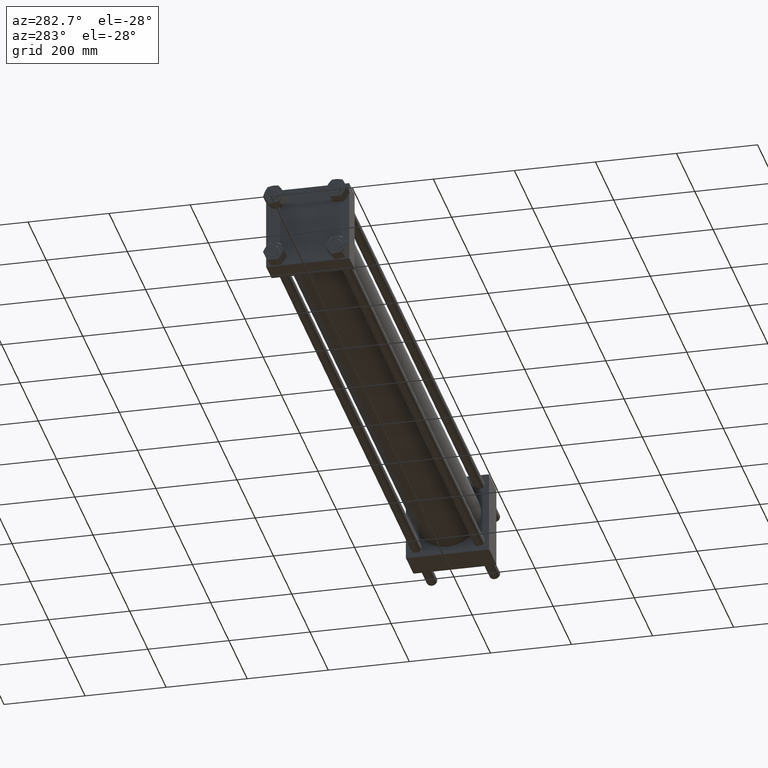
[diagram: clean part render]
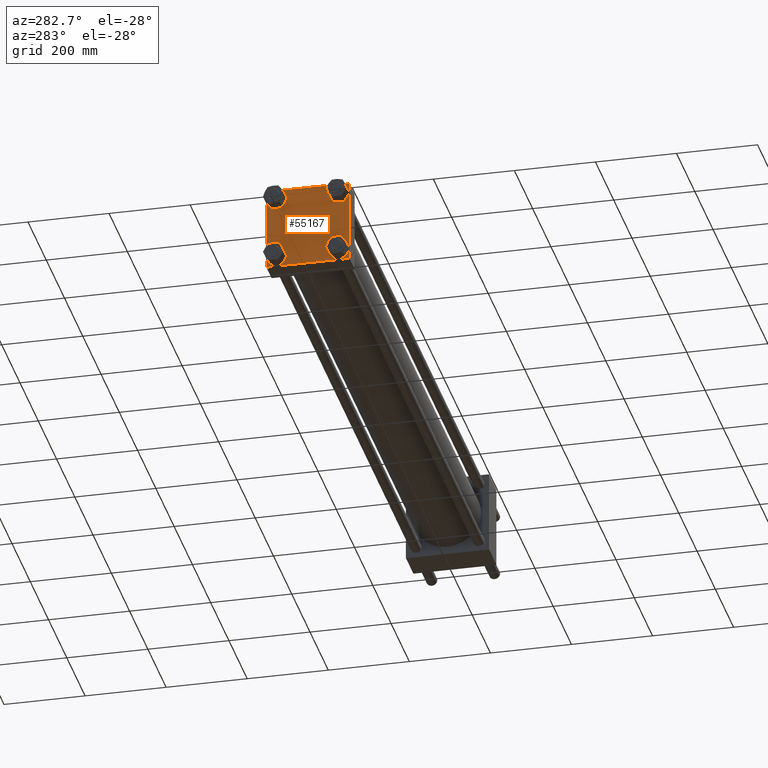
[diagram: same view with one face highlighted and labeled with its STEP entity id]
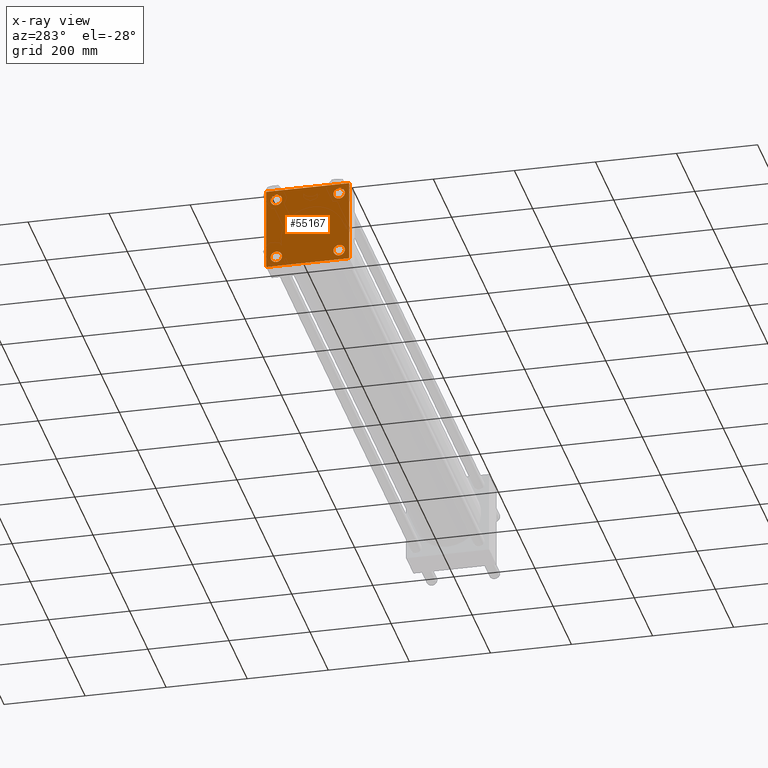
[diagram: x-ray of the same camera — body ghosted, the highlighted face saturated]
A machine part, auxiliary view. The second image highlights one B-rep face of the part: STEP entity #55167.
The next image is the same camera in x-ray: the body ghosted, the highlighted face saturated — about 0% of this face is hidden behind the body in this view.
In plain terms, the highlighted planar face has unit normal (-1, 0, 0).
Its self-contained STEP definition (entity closure, byte-faithful):
#153 = EDGE_CURVE ( 'NONE', #3515, #52894, #32252, .T. ) ;
#1124 = AXIS2_PLACEMENT_3D ( 'NONE', #56387, #47984, #52899 ) ;
#1281 = EDGE_CURVE ( 'NONE', #21848, #31931, #5615, .T. ) ;
#1359 = AXIS2_PLACEMENT_3D ( 'NONE', #23586, #54257, #15179 ) ;
#1747 = EDGE_CURVE ( 'NONE', #38564, #6823, #56321, .T. ) ;
#1810 = CARTESIAN_POINT ( 'NONE',  ( 0.000000000000000000, 77.44999999999998863, -63.44999999999989626 ) ) ;
#2348 = ORIENTED_EDGE ( 'NONE', *, *, #14543, .T. ) ;
#2793 = CARTESIAN_POINT ( 'NONE',  ( 0.000000000000000000, 102.2500000000000142, 102.2500000000000142 ) ) ;
#3515 = VERTEX_POINT ( 'NONE', #4379 ) ;
#3971 = ORIENTED_EDGE ( 'NONE', *, *, #7669, .T. ) ;
#4379 = CARTESIAN_POINT ( 'NONE',  ( 0.000000000000000000, -101.9999999999999432, -102.5000000000000000 ) ) ;
#4893 = CARTESIAN_POINT ( 'NONE',  ( 0.000000000000000000, -77.44999999999996021, -63.44999999999991047 ) ) ;
#5444 = DIRECTION ( 'NONE',  ( 0.000000000000000000, -1.000000000000000000, -1.353930517835556973E-16 ) ) ;
#5615 = CIRCLE ( 'NONE', #37997, 14.00000000000012434 ) ;
#5855 = EDGE_CURVE ( 'NONE', #6823, #34280, #20680, .T. ) ;
#5912 = DIRECTION ( 'NONE',  ( 0.000000000000000000, 0.000000000000000000, 1.000000000000000000 ) ) ;
#6148 = VERTEX_POINT ( 'NONE', #1810 ) ;
#6531 = VECTOR ( 'NONE', #18368, 1000.000000000000114 ) ;
#6823 = VERTEX_POINT ( 'NONE', #34588 ) ;
#7039 = EDGE_LOOP ( 'NONE', ( #24312, #51787 ) ) ;
#7669 = EDGE_CURVE ( 'NONE', #54705, #10793, #36384, .T. ) ;
#7698 = DIRECTION ( 'NONE',  ( 0.000000000000000000, 0.7071067811865474617, -0.7071067811865474617 ) ) ;
#8045 = EDGE_CURVE ( 'NONE', #38564, #22757, #22812, .T. ) ;
#8528 = FACE_OUTER_BOUND ( 'NONE', #46025, .T. ) ;
#9409 = LINE ( 'NONE', #18384, #41506 ) ;
#9796 = EDGE_LOOP ( 'NONE', ( #2348, #39002 ) ) ;
#10793 = VERTEX_POINT ( 'NONE', #14462 ) ;
#10838 = LINE ( 'NONE', #47282, #52496 ) ;
#11137 = DIRECTION ( 'NONE',  ( 0.000000000000000000, 0.000000000000000000, 1.000000000000000000 ) ) ;
#11668 = ORIENTED_EDGE ( 'NONE', *, *, #29781, .T. ) ;
#11911 = AXIS2_PLACEMENT_3D ( 'NONE', #23005, #14882, #5912 ) ;
#12106 = EDGE_CURVE ( 'NONE', #6148, #52434, #26338, .T. ) ;
#14063 = CIRCLE ( 'NONE', #1124, 14.00000000000012434 ) ;
#14092 = VECTOR ( 'NONE', #56554, 1000.000000000000000 ) ;
#14302 = ORIENTED_EDGE ( 'NONE', *, *, #153, .T. ) ;
#14462 = CARTESIAN_POINT ( 'NONE',  ( 0.000000000000000000, -77.44999999999996021, -91.45000000000015916 ) ) ;
#14543 = EDGE_CURVE ( 'NONE', #54050, #15514, #22557, .T. ) ;
#14812 = ORIENTED_EDGE ( 'NONE', *, *, #32584, .T. ) ;
#14882 = DIRECTION ( 'NONE',  ( 1.000000000000000000, -0.000000000000000000, -0.000000000000000000 ) ) ;
#15179 = DIRECTION ( 'NONE',  ( 0.000000000000000000, 0.000000000000000000, 1.000000000000000000 ) ) ;
#15514 = VERTEX_POINT ( 'NONE', #28003 ) ;
#16002 = ORIENTED_EDGE ( 'NONE', *, *, #5855, .T. ) ;
#16460 = AXIS2_PLACEMENT_3D ( 'NONE', #45737, #37344, #41111 ) ;
#17217 = PLANE ( 'NONE',  #35903 ) ;
#17432 = ORIENTED_EDGE ( 'NONE', *, *, #8045, .F. ) ;
#18302 = ORIENTED_EDGE ( 'NONE', *, *, #28971, .T. ) ;
#18368 = DIRECTION ( 'NONE',  ( 0.000000000000000000, -0.7071067811865474617, 0.7071067811865474617 ) ) ;
#18384 = CARTESIAN_POINT ( 'NONE',  ( 0.000000000000000000, 102.2500000000000000, -102.2500000000000000 ) ) ;
#19964 = DIRECTION ( 'NONE',  ( 0.000000000000000000, 0.000000000000000000, 1.000000000000000000 ) ) ;
#20395 = CARTESIAN_POINT ( 'NONE',  ( 0.000000000000000000, -77.44999999999996021, -77.45000000000003126 ) ) ;
#20680 = LINE ( 'NONE', #38354, #14092 ) ;
#21275 = ORIENTED_EDGE ( 'NONE', *, *, #35718, .T. ) ;
#21385 = CARTESIAN_POINT ( 'NONE',  ( 0.000000000000000000, -77.44999999999996021, 63.44999999999991047 ) ) ;
#21625 = DIRECTION ( 'NONE',  ( 0.000000000000000000, -1.000000000000000000, -1.353930517835556727E-16 ) ) ;
#21848 = VERTEX_POINT ( 'NONE', #24123 ) ;
#22557 = CIRCLE ( 'NONE', #54904, 14.00000000000012434 ) ;
#22757 = VERTEX_POINT ( 'NONE', #30611 ) ;
#22812 = LINE ( 'NONE', #31796, #38202 ) ;
#23005 = CARTESIAN_POINT ( 'NONE',  ( 0.000000000000000000, 77.44999999999998863, 77.45000000000001705 ) ) ;
#23369 = CARTESIAN_POINT ( 'NONE',  ( 0.000000000000000000, 77.44999999999998863, -91.45000000000014495 ) ) ;
#23586 = CARTESIAN_POINT ( 'NONE',  ( 0.000000000000000000, 77.44999999999998863, -77.45000000000001705 ) ) ;
#23969 = CARTESIAN_POINT ( 'NONE',  ( 0.000000000000000000, -102.4999999999999716, 102.0000000000000000 ) ) ;
#23999 = LINE ( 'NONE', #46273, #27875 ) ;
#24123 = CARTESIAN_POINT ( 'NONE',  ( 0.000000000000000000, -77.44999999999996021, 91.45000000000015916 ) ) ;
#24312 = ORIENTED_EDGE ( 'NONE', *, *, #12106, .T. ) ;
#24489 = CARTESIAN_POINT ( 'NONE',  ( 0.000000000000000000, 102.0000000000000142, 102.5000000000000284 ) ) ;
#25033 = DIRECTION ( 'NONE',  ( 1.000000000000000000, -0.000000000000000000, -0.000000000000000000 ) ) ;
#25288 = ORIENTED_EDGE ( 'NONE', *, *, #44772, .F. ) ;
#26338 = CIRCLE ( 'NONE', #1359, 14.00000000000012434 ) ;
#27112 = EDGE_CURVE ( 'NONE', #53503, #3515, #52871, .T. ) ;
#27626 = CIRCLE ( 'NONE', #11911, 14.00000000000012434 ) ;
#27875 = VECTOR ( 'NONE', #37899, 1000.000000000000000 ) ;
#28003 = CARTESIAN_POINT ( 'NONE',  ( 0.000000000000000000, 77.44999999999998863, 63.44999999999989626 ) ) ;
#28027 = AXIS2_PLACEMENT_3D ( 'NONE', #32711, #41969, #19964 ) ;
#28971 = EDGE_CURVE ( 'NONE', #32930, #22757, #10838, .T. ) ;
#29545 = EDGE_LOOP ( 'NONE', ( #3971, #11668 ) ) ;
#29781 = EDGE_CURVE ( 'NONE', #10793, #54705, #46101, .T. ) ;
#30278 = VECTOR ( 'NONE', #21625, 1000.000000000000000 ) ;
#30611 = CARTESIAN_POINT ( 'NONE',  ( 0.000000000000000000, -101.9999999999999147, 102.5000000000000000 ) ) ;
#31686 = CARTESIAN_POINT ( 'NONE',  ( 0.000000000000000000, -102.2499999999999716, -102.2499999999999716 ) ) ;
#31796 = CARTESIAN_POINT ( 'NONE',  ( 0.000000000000000000, 102.5000000000000284, 102.5000000000000284 ) ) ;
#31931 = VERTEX_POINT ( 'NONE', #21385 ) ;
#32252 = LINE ( 'NONE', #31686, #6531 ) ;
#32584 = EDGE_CURVE ( 'NONE', #31931, #21848, #42343, .T. ) ;
#32711 = CARTESIAN_POINT ( 'NONE',  ( 0.000000000000000000, -77.44999999999996021, -77.45000000000003126 ) ) ;
#32930 = VERTEX_POINT ( 'NONE', #23969 ) ;
#33702 = DIRECTION ( 'NONE',  ( -0.000000000000000000, 0.7071067811865474617, 0.7071067811865474617 ) ) ;
#34017 = CARTESIAN_POINT ( 'NONE',  ( 0.000000000000000000, 0.000000000000000000, 0.000000000000000000 ) ) ;
#34280 = VERTEX_POINT ( 'NONE', #36184 ) ;
#34588 = CARTESIAN_POINT ( 'NONE',  ( 0.000000000000000000, 102.5000000000000284, 102.0000000000000142 ) ) ;
#35270 = VECTOR ( 'NONE', #7698, 1000.000000000000114 ) ;
#35686 = EDGE_CURVE ( 'NONE', #15514, #54050, #27626, .T. ) ;
#35718 = EDGE_CURVE ( 'NONE', #34280, #53503, #9409, .T. ) ;
#35903 = AXIS2_PLACEMENT_3D ( 'NONE', #34017, #51664, #47888 ) ;
#36184 = CARTESIAN_POINT ( 'NONE',  ( 0.000000000000000000, 102.5000000000000284, -101.9999999999999147 ) ) ;
#36340 = DIRECTION ( 'NONE',  ( -0.000000000000000000, -0.7071067811865474617, -0.7071067811865474617 ) ) ;
#36384 = CIRCLE ( 'NONE', #28027, 14.00000000000012434 ) ;
#36834 = DIRECTION ( 'NONE',  ( 0.000000000000000000, 0.000000000000000000, 1.000000000000000000 ) ) ;
#37344 = DIRECTION ( 'NONE',  ( 1.000000000000000000, -0.000000000000000000, -0.000000000000000000 ) ) ;
#37899 = DIRECTION ( 'NONE',  ( 0.000000000000000000, -1.353930517835556973E-16, -1.000000000000000000 ) ) ;
#37997 = AXIS2_PLACEMENT_3D ( 'NONE', #40880, #40596, #36834 ) ;
#38202 = VECTOR ( 'NONE', #5444, 1000.000000000000000 ) ;
#38354 = CARTESIAN_POINT ( 'NONE',  ( 0.000000000000000000, 102.5000000000000284, 102.5000000000000284 ) ) ;
#38564 = VERTEX_POINT ( 'NONE', #24489 ) ;
#39002 = ORIENTED_EDGE ( 'NONE', *, *, #35686, .T. ) ;
#39230 = FACE_BOUND ( 'NONE', #29545, .T. ) ;
#39741 = ORIENTED_EDGE ( 'NONE', *, *, #1747, .T. ) ;
#40572 = ORIENTED_EDGE ( 'NONE', *, *, #27112, .T. ) ;
#40596 = DIRECTION ( 'NONE',  ( 1.000000000000000000, -0.000000000000000000, -0.000000000000000000 ) ) ;
#40880 = CARTESIAN_POINT ( 'NONE',  ( 0.000000000000000000, -77.44999999999996021, 77.45000000000003126 ) ) ;
#41111 = DIRECTION ( 'NONE',  ( 0.000000000000000000, 0.000000000000000000, 1.000000000000000000 ) ) ;
#41506 = VECTOR ( 'NONE', #36340, 1000.000000000000114 ) ;
#41969 = DIRECTION ( 'NONE',  ( 1.000000000000000000, -0.000000000000000000, -0.000000000000000000 ) ) ;
#42343 = CIRCLE ( 'NONE', #16460, 14.00000000000012434 ) ;
#42382 = AXIS2_PLACEMENT_3D ( 'NONE', #20395, #25033, #11137 ) ;
#42925 = ORIENTED_EDGE ( 'NONE', *, *, #1281, .T. ) ;
#44772 = EDGE_CURVE ( 'NONE', #32930, #52894, #23999, .T. ) ;
#45153 = EDGE_LOOP ( 'NONE', ( #42925, #14812 ) ) ;
#45737 = CARTESIAN_POINT ( 'NONE',  ( 0.000000000000000000, -77.44999999999996021, 77.45000000000003126 ) ) ;
#46025 = EDGE_LOOP ( 'NONE', ( #16002, #21275, #40572, #14302, #25288, #18302, #17432, #39741 ) ) ;
#46101 = CIRCLE ( 'NONE', #42382, 14.00000000000012434 ) ;
#46273 = CARTESIAN_POINT ( 'NONE',  ( 0.000000000000000000, -102.4999999999999716, 102.5000000000000000 ) ) ;
#47002 = CARTESIAN_POINT ( 'NONE',  ( 0.000000000000000000, 77.44999999999998863, 77.45000000000001705 ) ) ;
#47282 = CARTESIAN_POINT ( 'NONE',  ( 0.000000000000000000, -102.2499999999999716, 102.2499999999999716 ) ) ;
#47888 = DIRECTION ( 'NONE',  ( 0.000000000000000000, 0.000000000000000000, 1.000000000000000000 ) ) ;
#47984 = DIRECTION ( 'NONE',  ( 1.000000000000000000, -0.000000000000000000, -0.000000000000000000 ) ) ;
#48175 = FACE_BOUND ( 'NONE', #9796, .T. ) ;
#50003 = CARTESIAN_POINT ( 'NONE',  ( 0.000000000000000000, 77.44999999999998863, 91.45000000000014495 ) ) ;
#51317 = EDGE_CURVE ( 'NONE', #52434, #6148, #14063, .T. ) ;
#51623 = DIRECTION ( 'NONE',  ( 1.000000000000000000, -0.000000000000000000, -0.000000000000000000 ) ) ;
#51664 = DIRECTION ( 'NONE',  ( -1.000000000000000000, 0.000000000000000000, 0.000000000000000000 ) ) ;
#51787 = ORIENTED_EDGE ( 'NONE', *, *, #51317, .T. ) ;
#52203 = CARTESIAN_POINT ( 'NONE',  ( 0.000000000000000000, 102.0000000000000142, -102.4999999999999716 ) ) ;
#52239 = FACE_BOUND ( 'NONE', #45153, .T. ) ;
#52305 = CARTESIAN_POINT ( 'NONE',  ( 0.000000000000000000, 102.5000000000000284, -102.4999999999999716 ) ) ;
#52434 = VERTEX_POINT ( 'NONE', #23369 ) ;
#52496 = VECTOR ( 'NONE', #33702, 1000.000000000000114 ) ;
#52871 = LINE ( 'NONE', #52305, #30278 ) ;
#52894 = VERTEX_POINT ( 'NONE', #54973 ) ;
#52899 = DIRECTION ( 'NONE',  ( 0.000000000000000000, 0.000000000000000000, 1.000000000000000000 ) ) ;
#53503 = VERTEX_POINT ( 'NONE', #52203 ) ;
#54050 = VERTEX_POINT ( 'NONE', #50003 ) ;
#54257 = DIRECTION ( 'NONE',  ( 1.000000000000000000, -0.000000000000000000, -0.000000000000000000 ) ) ;
#54705 = VERTEX_POINT ( 'NONE', #4893 ) ;
#54904 = AXIS2_PLACEMENT_3D ( 'NONE', #47002, #51623, #55968 ) ;
#54973 = CARTESIAN_POINT ( 'NONE',  ( 0.000000000000000000, -102.5000000000000000, -101.9999999999998863 ) ) ;
#55167 = ADVANCED_FACE ( 'NONE', ( #52239, #39230, #56009, #48175, #8528 ), #17217, .T. ) ;
#55968 = DIRECTION ( 'NONE',  ( 0.000000000000000000, 0.000000000000000000, 1.000000000000000000 ) ) ;
#56009 = FACE_BOUND ( 'NONE', #7039, .T. ) ;
#56321 = LINE ( 'NONE', #2793, #35270 ) ;
#56387 = CARTESIAN_POINT ( 'NONE',  ( 0.000000000000000000, 77.44999999999998863, -77.45000000000001705 ) ) ;
#56554 = DIRECTION ( 'NONE',  ( 0.000000000000000000, 0.000000000000000000, -1.000000000000000000 ) ) ;